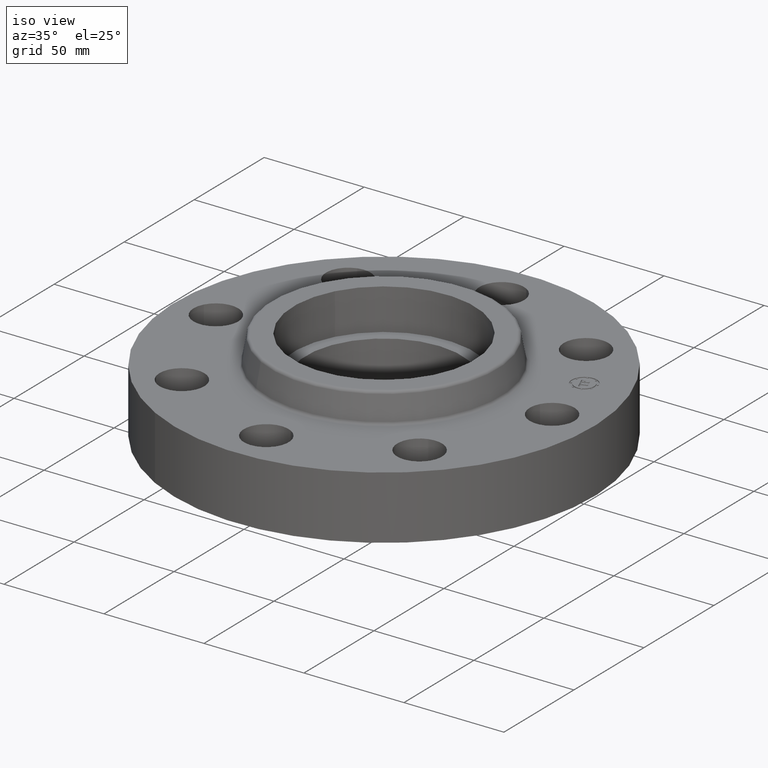
[diagram: clean part render]
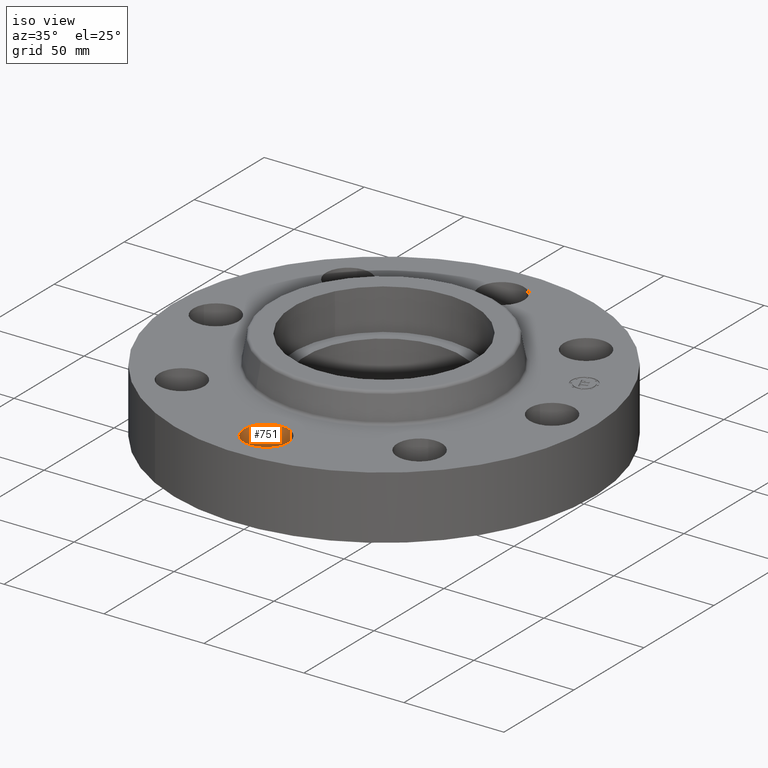
[diagram: same view with one face highlighted and labeled with its STEP entity id]
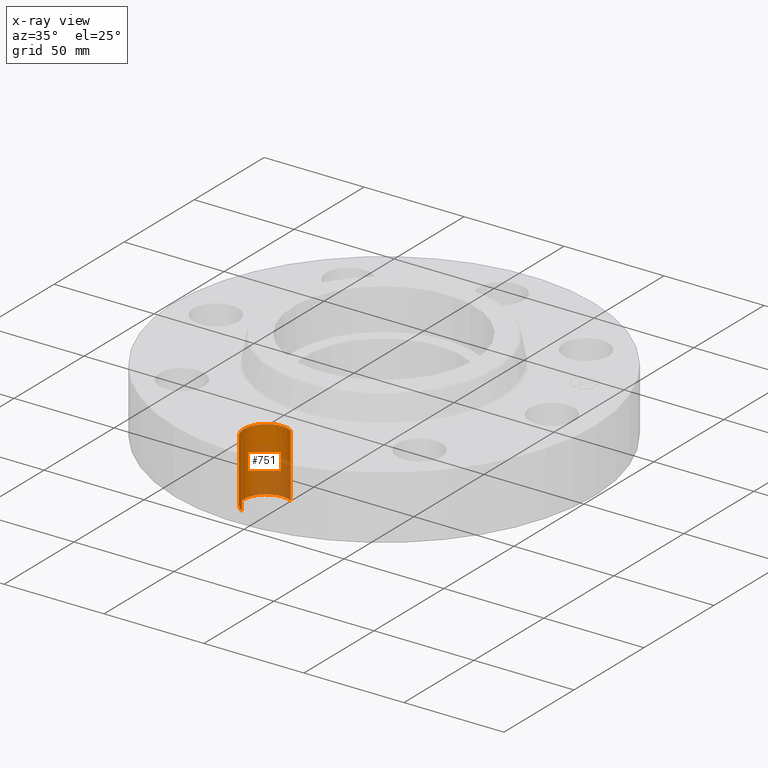
[diagram: x-ray of the same camera — body ghosted, the highlighted face saturated]
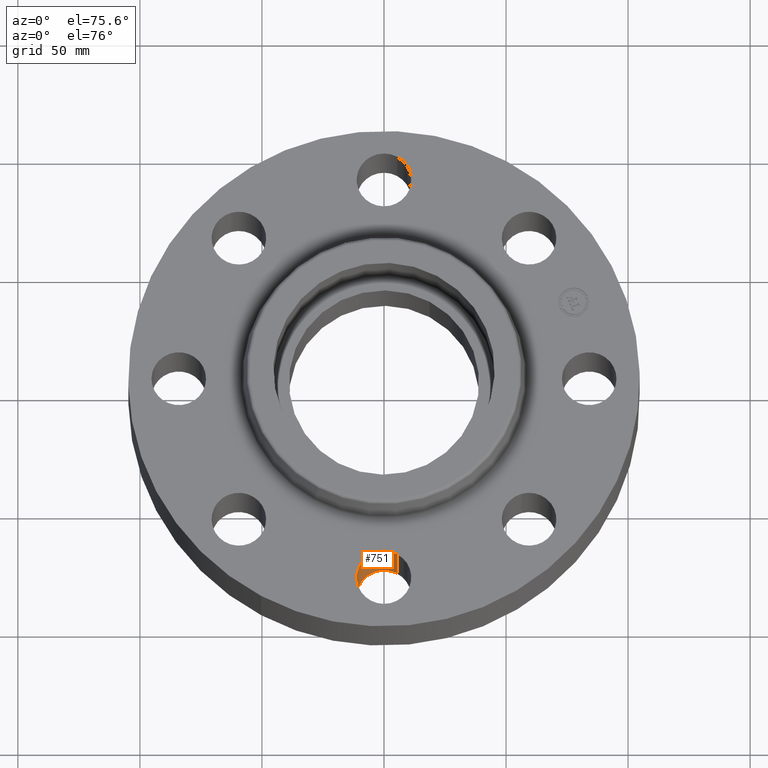
[diagram: same view with one face highlighted and labeled with its STEP entity id]
A machine part, iso view. The second image highlights one B-rep face of the part: STEP entity #751.
The next image is the same camera in x-ray: the body ghosted, the highlighted face saturated — about 38% of this face is hidden behind the body in this view.
A second angle (auxiliary view) of the same face is appended — the face is thin or edge-on in the first view.
In plain terms, the highlighted cylindrical surface (edge-blend (fillet) strip) has radius 11.176 mm, axis along (0, -0, -1).
Its self-contained STEP definition (entity closure, byte-faithful):
#194=AXIS2_PLACEMENT_3D('Circle Axis2P3D',#192,#193,$) ;
#724=AXIS2_PLACEMENT_3D('Cylinder Axis2P3D',#721,#722,#723) ;
#742=AXIS2_PLACEMENT_3D('Circle Axis2P3D',#740,#741,$) ;
#187=CARTESIAN_POINT('Vertex',(0.210947236987,-2.92386367278,0.)) ;
#189=CARTESIAN_POINT('Vertex',(-0.210947236987,-3.69613632725,0.)) ;
#192=CARTESIAN_POINT('Axis2P3D Location',(-5.24514814784E-016,-3.31000000001,0.)) ;
#721=CARTESIAN_POINT('Axis2P3D Location',(-3.56803423843E-016,-3.31000000001,1.24606299213)) ;
#726=CARTESIAN_POINT('Line Origine',(-0.210947236987,-3.69613632725,0.625000000003)) ;
#730=CARTESIAN_POINT('Vertex',(-0.210947236987,-3.69613632725,1.25000000001)) ;
#733=CARTESIAN_POINT('Line Origine',(0.210947236987,-2.92386367278,0.625000000003)) ;
#737=CARTESIAN_POINT('Vertex',(0.210947236987,-2.92386367278,1.25000000001)) ;
#740=CARTESIAN_POINT('Axis2P3D Location',(-3.56803423843E-016,-3.31000000001,1.25000000001)) ;
#193=DIRECTION('Axis2P3D Direction',(0.,0.,-0.0393700787402)) ;
#722=DIRECTION('Axis2P3D Direction',(0.,-0.,-0.0393700787402)) ;
#723=DIRECTION('Axis2P3D XDirection',(0.0188750212049,0.0345504945626,-0.)) ;
#727=DIRECTION('Vector Direction',(0.,0.,-0.0393700787402)) ;
#734=DIRECTION('Vector Direction',(0.,0.,-0.0393700787402)) ;
#741=DIRECTION('Axis2P3D Direction',(0.,-0.,-0.0393700787402)) ;
#728=VECTOR('Line Direction',#727,0.0393700787402) ;
#735=VECTOR('Line Direction',#734,0.0393700787402) ;
#746=ORIENTED_EDGE('',*,*,#732,.F.) ;
#747=ORIENTED_EDGE('',*,*,#196,.T.) ;
#748=ORIENTED_EDGE('',*,*,#739,.T.) ;
#749=ORIENTED_EDGE('',*,*,#744,.F.) ;
#751=ADVANCED_FACE('PartBody',(#750),#725,.F.) ;
#195=CIRCLE('generated circle',#194,0.440000000002) ;
#743=CIRCLE('generated circle',#742,0.440000000002) ;
#725=CYLINDRICAL_SURFACE('generated cylinder',#724,0.440000000002) ;
#196=EDGE_CURVE('',#190,#188,#195,.T.) ;
#732=EDGE_CURVE('',#190,#731,#729,.F.) ;
#739=EDGE_CURVE('',#188,#738,#736,.F.) ;
#744=EDGE_CURVE('',#731,#738,#743,.T.) ;
#745=EDGE_LOOP('',(#746,#747,#748,#749)) ;
#750=FACE_OUTER_BOUND('',#745,.T.) ;
#729=LINE('Line',#726,#728) ;
#736=LINE('Line',#733,#735) ;
#188=VERTEX_POINT('',#187) ;
#190=VERTEX_POINT('',#189) ;
#731=VERTEX_POINT('',#730) ;
#738=VERTEX_POINT('',#737) ;